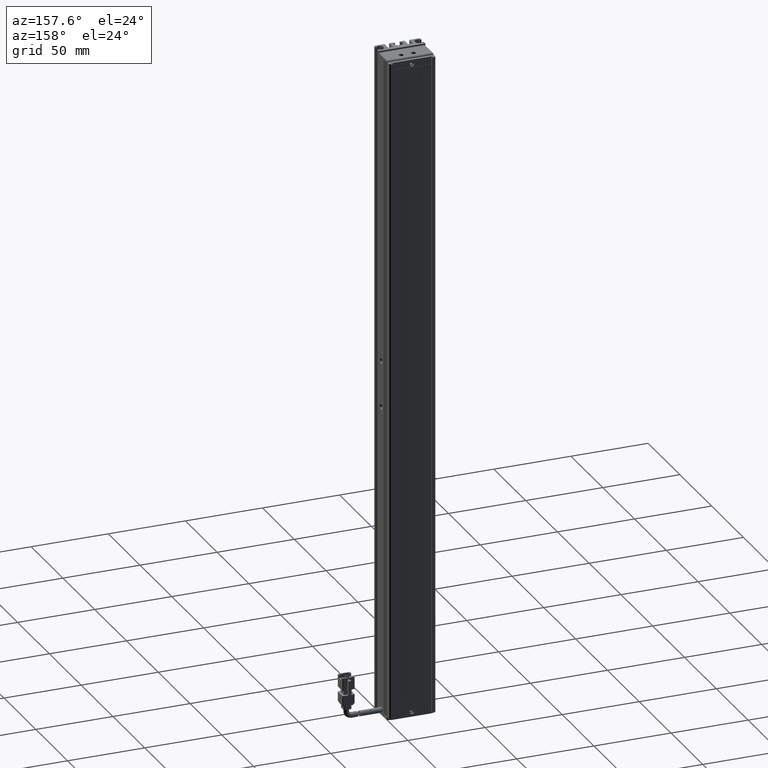
[diagram: clean part render]
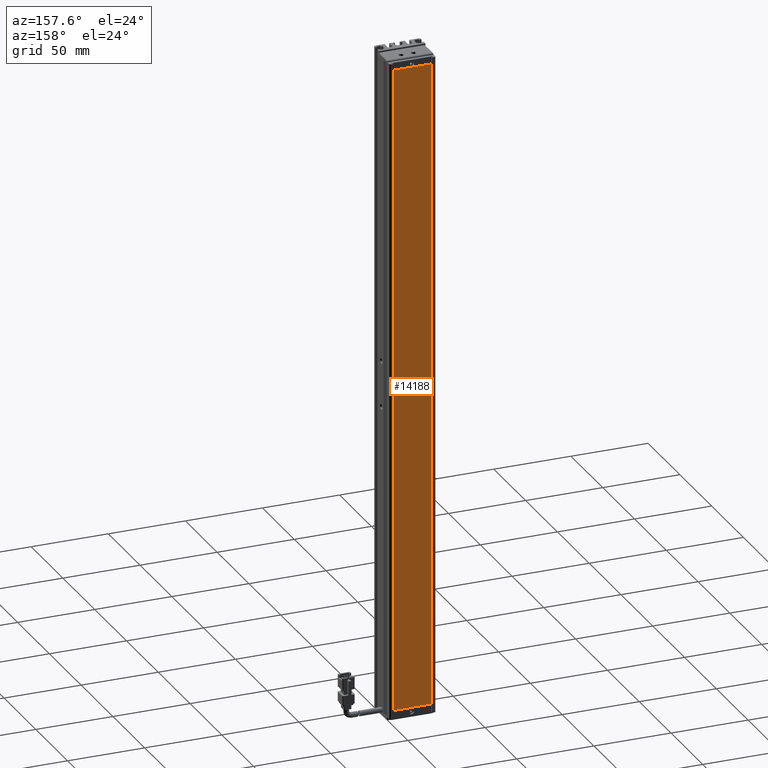
[diagram: same view with one face highlighted and labeled with its STEP entity id]
A machine part, auxiliary view. The second image highlights one B-rep face of the part: STEP entity #14188.
In plain terms, the highlighted planar face has unit normal (0, 1, 0).
Its self-contained STEP definition (entity closure, byte-faithful):
#1165 = EDGE_LOOP ( 'NONE', ( #27291, #5256, #37740, #39953 ) ) ;
#5256 = ORIENTED_EDGE ( 'NONE', *, *, #55369, .T. ) ;
#5484 = EDGE_CURVE ( 'NONE', #6512, #7572, #63987, .T. ) ;
#6512 = VERTEX_POINT ( 'NONE', #15566 ) ;
#7572 = VERTEX_POINT ( 'NONE', #54487 ) ;
#9393 = DIRECTION ( 'NONE',  ( 1.000000000000000000, 0.0000000000000000000, 0.0000000000000000000 ) ) ;
#13259 = PLANE ( 'NONE',  #35233 ) ;
#14188 = ADVANCED_FACE ( 'NONE', ( #17440 ), #13259, .T. ) ;
#14504 = DIRECTION ( 'NONE',  ( 0.0000000000000000000, 0.0000000000000000000, -1.000000000000000000 ) ) ;
#15566 = CARTESIAN_POINT ( 'NONE',  ( 28.52537974683541600, 34.29594479660387000, -324.8500000000000800 ) ) ;
#16652 = EDGE_CURVE ( 'NONE', #7572, #44812, #26187, .T. ) ;
#16884 = LINE ( 'NONE', #37314, #31272 ) ;
#16901 = DIRECTION ( 'NONE',  ( 0.0000000000000000000, 0.0000000000000000000, 1.000000000000000000 ) ) ;
#17440 = FACE_OUTER_BOUND ( 'NONE', #1165, .T. ) ;
#19728 = DIRECTION ( 'NONE',  ( 0.0000000000000000000, 1.000000000000000000, 0.0000000000000000000 ) ) ;
#22274 = VERTEX_POINT ( 'NONE', #67241 ) ;
#26187 = LINE ( 'NONE', #28245, #42492 ) ;
#27291 = ORIENTED_EDGE ( 'NONE', *, *, #79726, .T. ) ;
#28245 = CARTESIAN_POINT ( 'NONE',  ( 28.52537974683541600, 34.29594479660387000, 95.14999999999993500 ) ) ;
#31272 = VECTOR ( 'NONE', #56076, 1000.000000000000000 ) ;
#35233 = AXIS2_PLACEMENT_3D ( 'NONE', #56506, #19728, #62714 ) ;
#37314 = CARTESIAN_POINT ( 'NONE',  ( 53.32537974683541600, 34.29594479660387000, -324.8500000000000800 ) ) ;
#37740 = ORIENTED_EDGE ( 'NONE', *, *, #5484, .T. ) ;
#39953 = ORIENTED_EDGE ( 'NONE', *, *, #16652, .T. ) ;
#42492 = VECTOR ( 'NONE', #9393, 1000.000000000000000 ) ;
#44812 = VERTEX_POINT ( 'NONE', #73395 ) ;
#49505 = VECTOR ( 'NONE', #16901, 1000.000000000000000 ) ;
#54487 = CARTESIAN_POINT ( 'NONE',  ( 28.52537974683541600, 34.29594479660387000, 95.14999999999993500 ) ) ;
#55369 = EDGE_CURVE ( 'NONE', #22274, #6512, #16884, .T. ) ;
#56076 = DIRECTION ( 'NONE',  ( -1.000000000000000000, 0.0000000000000000000, 0.0000000000000000000 ) ) ;
#56506 = CARTESIAN_POINT ( 'NONE',  ( 0.0000000000000000000, 34.29594479660387000, 0.0000000000000000000 ) ) ;
#59879 = CARTESIAN_POINT ( 'NONE',  ( 28.52537974683541600, 34.29594479660387000, -324.8500000000000800 ) ) ;
#62714 = DIRECTION ( 'NONE',  ( 0.0000000000000000000, -0.0000000000000000000, 1.000000000000000000 ) ) ;
#63987 = LINE ( 'NONE', #59879, #49505 ) ;
#67241 = CARTESIAN_POINT ( 'NONE',  ( 53.32537974683541600, 34.29594479660387000, -324.8500000000000800 ) ) ;
#69289 = CARTESIAN_POINT ( 'NONE',  ( 53.32537974683541600, 34.29594479660387000, 95.14999999999993500 ) ) ;
#73395 = CARTESIAN_POINT ( 'NONE',  ( 53.32537974683541600, 34.29594479660387000, 95.14999999999993500 ) ) ;
#73711 = VECTOR ( 'NONE', #14504, 1000.000000000000000 ) ;
#75654 = LINE ( 'NONE', #69289, #73711 ) ;
#79726 = EDGE_CURVE ( 'NONE', #44812, #22274, #75654, .T. ) ;